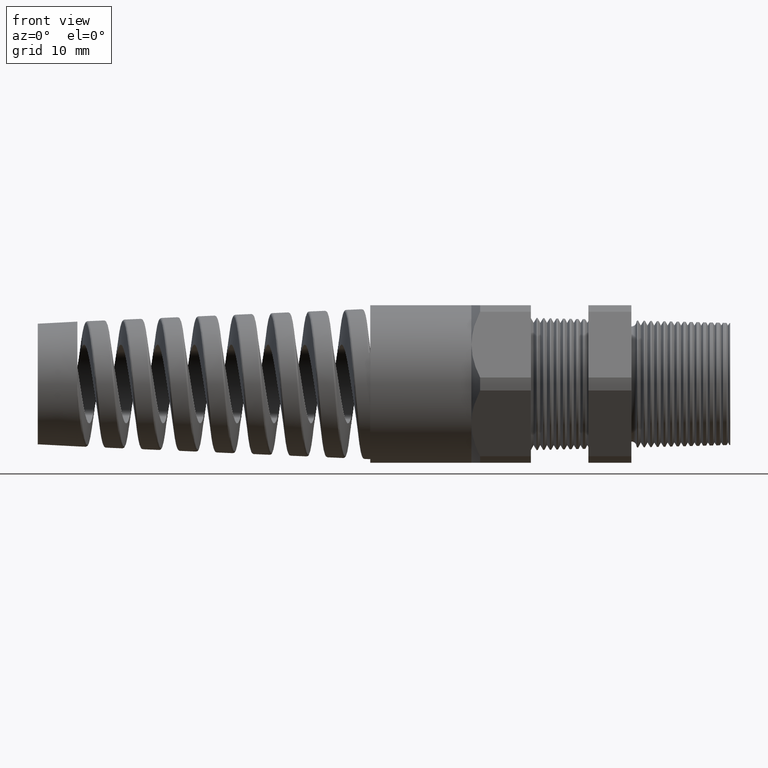
[diagram: clean part render]
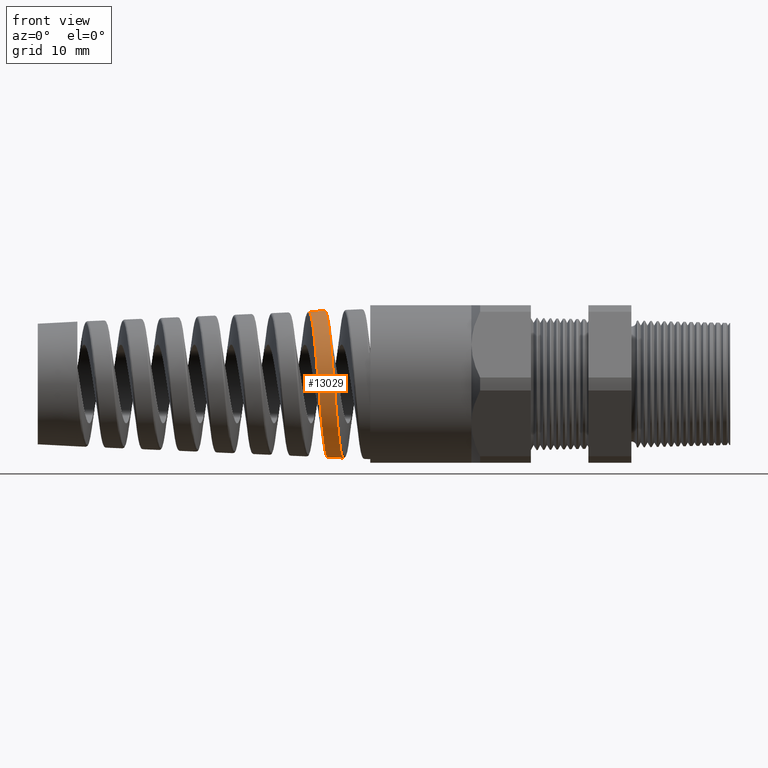
[diagram: same view with one face highlighted and labeled with its STEP entity id]
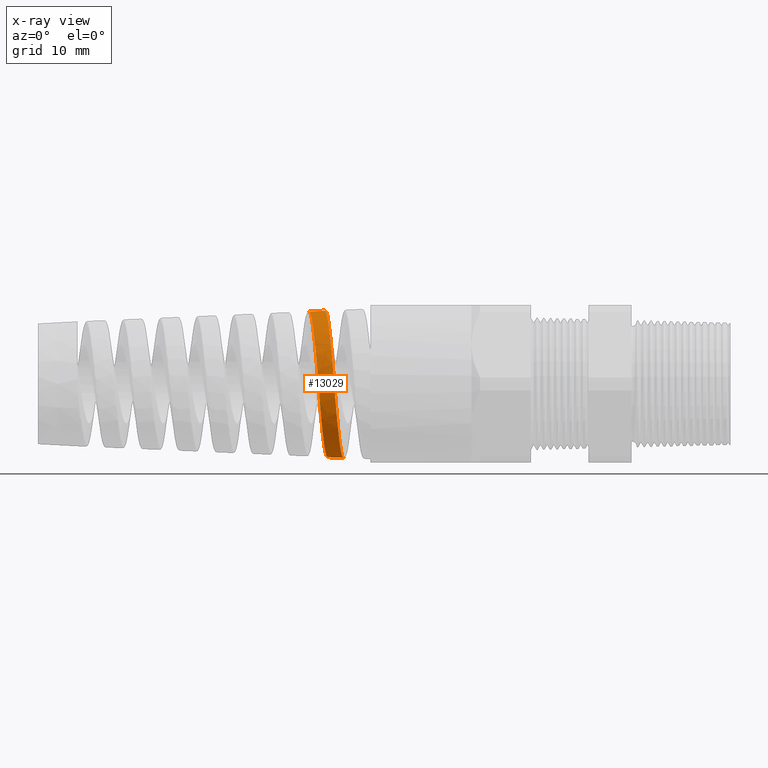
[diagram: x-ray of the same camera — body ghosted, the highlighted face saturated]
A machine part, front view. The second image highlights one B-rep face of the part: STEP entity #13029.
The next image is the same camera in x-ray: the body ghosted, the highlighted face saturated — about 0% of this face is hidden behind the body in this view.
In plain terms, the highlighted conical surface has half-angle 2.5 deg.
Its self-contained STEP definition (entity closure, byte-faithful):
#1559 = VERTEX_POINT ( 'NONE', #12031 ) ;
#1561 = EDGE_CURVE ( 'NONE', #1559, #1562, #12057, .T. ) ;
#1562 = VERTEX_POINT ( 'NONE', #12053 ) ;
#12031 = CARTESIAN_POINT ( 'NONE',  ( -2.231331900771360600, 1.538719108245146800E-015, 0.4323934370551409900 ) ) ;
#12053 = CARTESIAN_POINT ( 'NONE',  ( -2.136958732337116200, -9.837559784406085300E-016, 0.4365138585742439600 ) ) ;
#12054 = DIRECTION ( 'NONE',  ( 0.9990482215818576900, 5.341834311772765600E-018, 0.04361938736533634700 ) ) ;
#12055 = VECTOR ( 'NONE', #12054, 39.37007874015748100 ) ;
#12056 = CARTESIAN_POINT ( 'NONE',  ( -1.369999999999999900, 5.755839955992558400E-017, 0.4699999999999998600 ) ) ;
#12057 = LINE ( 'NONE', #12056, #12055 ) ;
#12923 = VERTEX_POINT ( 'NONE', #13869 ) ;
#12938 = VERTEX_POINT ( 'NONE', #13865 ) ;
#12991 = EDGE_LOOP ( 'NONE', ( #13021, #13022, #13023, #13041 ) ) ;
#13019 = EDGE_CURVE ( 'NONE', #1559, #12938, #14230, .T. ) ;
#13021 = ORIENTED_EDGE ( 'NONE', *, *, #1561, .F. ) ;
#13022 = ORIENTED_EDGE ( 'NONE', *, *, #13019, .T. ) ;
#13023 = ORIENTED_EDGE ( 'NONE', *, *, #16380, .T. ) ;
#13029 = ADVANCED_FACE ( 'NONE', ( #14228 ), #14261, .T. ) ;
#13041 = ORIENTED_EDGE ( 'NONE', *, *, #13057, .T. ) ;
#13057 = EDGE_CURVE ( 'NONE', #12923, #1562, #14462, .T. ) ;
#13865 = CARTESIAN_POINT ( 'NONE',  ( -2.121162570605299000, -1.098488534835225200E-012, -0.4372035338897904400 ) ) ;
#13869 = CARTESIAN_POINT ( 'NONE',  ( -2.027124883345048400, -1.869557683998183800E-017, -0.4413093079845087900 ) ) ;
#14203 = CARTESIAN_POINT ( 'NONE',  ( -2.171517275481169100, -0.4312836674185713800, -0.05853042810672694200 ) ) ;
#14204 = CARTESIAN_POINT ( 'NONE',  ( -2.173809867068220200, -0.4340851861067502300, -0.03023886372500571600 ) ) ;
#14205 = CARTESIAN_POINT ( 'NONE',  ( -2.176091333293166400, -0.4354910292023556100, -0.001932762701584900800 ) ) ;
#14206 = CARTESIAN_POINT ( 'NONE',  ( -2.178375429326629300, -0.4341367655323870600, 0.02640009026625405500 ) ) ;
#14207 = CARTESIAN_POINT ( 'NONE',  ( -2.180672662773507100, -0.4313785164358923100, 0.05474559502213508600 ) ) ;
#14208 = CARTESIAN_POINT ( 'NONE',  ( -2.181834296280764600, -0.4292788729023684900, 0.06900237557675999200 ) ) ;
#14209 = CARTESIAN_POINT ( 'NONE',  ( -2.185294272913224800, -0.4209437970030093800, 0.1110351096633477700 ) ) ;
#14210 = CARTESIAN_POINT ( 'NONE',  ( -2.187572040177133500, -0.4127218316210615700, 0.1381514525789061500 ) ) ;
#14211 = CARTESIAN_POINT ( 'NONE',  ( -2.192153015033352100, -0.3910528523841704200, 0.1906019694790175300 ) ) ;
#14212 = CARTESIAN_POINT ( 'NONE',  ( -2.194480288102528900, -0.3774189982537751700, 0.2161474475943709900 ) ) ;
#14213 = CARTESIAN_POINT ( 'NONE',  ( -2.199073210008148500, -0.3458622319635263300, 0.2633820683365656300 ) ) ;
#14214 = CARTESIAN_POINT ( 'NONE',  ( -2.201353600711398100, -0.3279053280312105900, 0.2852876916856335600 ) ) ;
#14215 = CARTESIAN_POINT ( 'NONE',  ( -2.204811509589987400, -0.2976633952822102000, 0.3155417360831688800 ) ) ;
#14216 = CARTESIAN_POINT ( 'NONE',  ( -2.205975966352819100, -0.2869754500334816800, 0.3252248025945172500 ) ) ;
#14217 = CARTESIAN_POINT ( 'NONE',  ( -2.208282935200708500, -0.2649147969889744100, 0.3433058598976183600 ) ) ;
#14218 = CARTESIAN_POINT ( 'NONE',  ( -2.209430192852991600, -0.2535046306975849400, 0.3517498141931059700 ) ) ;
#14219 = CARTESIAN_POINT ( 'NONE',  ( -2.212870076689168000, -0.2181588980338261800, 0.3753276114577912500 ) ) ;
#14220 = CARTESIAN_POINT ( 'NONE',  ( -2.215164198628793500, -0.1930681999559965000, 0.3887457103996759800 ) ) ;
#14221 = CARTESIAN_POINT ( 'NONE',  ( -2.219810310005696500, -0.1400110124368382800, 0.4106334170682022200 ) ) ;
#14222 = CARTESIAN_POINT ( 'NONE',  ( -2.222096644440896700, -0.1128320769876093200, 0.4187895851010250400 ) ) ;
#14223 = CARTESIAN_POINT ( 'NONE',  ( -2.225542304219461500, -0.07112939013308872100, 0.4269942274725931400 ) ) ;
#14224 = CARTESIAN_POINT ( 'NONE',  ( -2.226693341524334200, -0.05707161816231418700, 0.4290525756093521700 ) ) ;
#14225 = CARTESIAN_POINT ( 'NONE',  ( -2.229010475305106100, -0.02863524671693102800, 0.4317821038072549000 ) ) ;
#14226 = CARTESIAN_POINT ( 'NONE',  ( -2.230177561496665500, -0.01423940330200604300, 0.4324438365963104700 ) ) ;
#14227 = CARTESIAN_POINT ( 'NONE',  ( -2.231331900771360600, 1.538719108245146800E-015, 0.4323934370551409900 ) ) ;
#14228 = FACE_OUTER_BOUND ( 'NONE', #12991, .T. ) ;
#14230 = B_SPLINE_CURVE_WITH_KNOTS ( 'NONE', 3,
 ( #14227, #14226, #14225, #14224, #14223, #14222, #14221, #14220, #14219, #14218, #14217, #14216, #14215, #14214, #14213, #14212, #14211, #14210, #14209, #14208, #14207, #14206, #14205, #14204, #14203, #14286, #14285, #14284, #14283, #14282, #14281, #14280, #14279, #14278, #14277, #14276, #14275, #14274, #14273, #14272, #14271, #14270, #14269, #14268, #14267, #14266, #14265, #14264, #14263 ),
 .UNSPECIFIED., .F., .F.,
 ( 4, 2, 2, 2, 2, 2, 2, 2, 2, 2, 2, 1, 2, 2, 2, 2, 2, 2, 2, 2, 2, 2, 2, 2, 4 ),
 ( 0.4070003021110117900, 0.4080960166227987100, 0.4091917311345855700, 0.4113831601581593400, 0.4135745891817331200, 0.4146703036935200400, 0.4157660182053069000, 0.4179574472288806700, 0.4201488762524544500, 0.4223403052760282300, 0.4234360197878150900, 0.4245317342996020000, 0.4256274488113889200, 0.4267231633231757800, 0.4289145923467495600, 0.4300103068585364700, 0.4311060213703233300, 0.4332974503938971100, 0.4343931649056840300, 0.4354888794174708900, 0.4376803084410446600, 0.4387760229528315800, 0.4398717374646185000, 0.4409674519764053600, 0.4420631664881922700 ),
 .UNSPECIFIED. ) ;
#14258 = DIRECTION ( 'NONE',  ( 0.0000000000000000000, 0.0000000000000000000, -1.000000000000000000 ) ) ;
#14259 = DIRECTION ( 'NONE',  ( 1.000000000000000000, 0.0000000000000000000, 0.0000000000000000000 ) ) ;
#14260 = AXIS2_PLACEMENT_3D ( 'NONE', #14262, #14259, #14258 ) ;
#14261 = CONICAL_SURFACE ( 'NONE', #14260, 0.4699999999999998600, 0.04363323129985858400 ) ;
#14262 = CARTESIAN_POINT ( 'NONE',  ( -1.369999999999999900, 0.0000000000000000000, 0.0000000000000000000 ) ) ;
#14263 = CARTESIAN_POINT ( 'NONE',  ( -2.121162570605299000, -1.098488534835225200E-012, -0.4372035338897904400 ) ) ;
#14264 = CARTESIAN_POINT ( 'NONE',  ( -2.122307722575768700, -0.01428404826497243700, -0.4371535354749513900 ) ) ;
#14265 = CARTESIAN_POINT ( 'NONE',  ( -2.123461994771173300, -0.02867392872591293500, -0.4363940078195490700 ) ) ;
#14266 = CARTESIAN_POINT ( 'NONE',  ( -2.125747301005961500, -0.05700648581398074000, -0.4335031345675646200 ) ) ;
#14267 = CARTESIAN_POINT ( 'NONE',  ( -2.126884675444345300, -0.07102855163806357000, -0.4313745148217295000 ) ) ;
#14268 = CARTESIAN_POINT ( 'NONE',  ( -2.129158968301915000, -0.09878822629707476000, -0.4257735857633613300 ) ) ;
#14269 = CARTESIAN_POINT ( 'NONE',  ( -2.130295773213905200, -0.1125258418946660600, -0.4223012641926330900 ) ) ;
#14270 = CARTESIAN_POINT ( 'NONE',  ( -2.132577812223247300, -0.1397125792379831600, -0.4139973249003729400 ) ) ;
#14271 = CARTESIAN_POINT ( 'NONE',  ( -2.133728226000509500, -0.1532179816174283900, -0.4091416802657383800 ) ) ;
#14272 = CARTESIAN_POINT ( 'NONE',  ( -2.137177767931223800, -0.1928857375334525100, -0.3926216036488929300 ) ) ;
#14273 = CARTESIAN_POINT ( 'NONE',  ( -2.139445409813881800, -0.2178645187509352400, -0.3791938828618138200 ) ) ;
#14274 = CARTESIAN_POINT ( 'NONE',  ( -2.142864488760610500, -0.2531960935492967900, -0.3555444922316504100 ) ) ;
#14275 = CARTESIAN_POINT ( 'NONE',  ( -2.144006879427342600, -0.2646146623897422400, -0.3470725442497117900 ) ) ;
#14276 = CARTESIAN_POINT ( 'NONE',  ( -2.146306215823962700, -0.2867141772961570600, -0.3289189545009284000 ) ) ;
#14277 = CARTESIAN_POINT ( 'NONE',  ( -2.147461462260319600, -0.2973700383350258400, -0.3192455449343781800 ) ) ;
#14278 = CARTESIAN_POINT ( 'NONE',  ( -2.150892683788183700, -0.3275321031544757800, -0.2890433369855546800 ) ) ;
#14279 = CARTESIAN_POINT ( 'NONE',  ( -2.153159919452925400, -0.3454954461764356800, -0.2671508079096361300 ) ) ;
#14280 = CARTESIAN_POINT ( 'NONE',  ( -2.156596326336722900, -0.3692200728741776300, -0.2316795835015423000 ) ) ;
#14281 = CARTESIAN_POINT ( 'NONE',  ( -2.157753748041283200, -0.3766226371892531500, -0.2193456884420002800 ) ) ;
#14282 = CARTESIAN_POINT ( 'NONE',  ( -2.160057312630246300, -0.3901129738775704900, -0.1941169667445965500 ) ) ;
#14283 = CARTESIAN_POINT ( 'NONE',  ( -2.161200475665919100, -0.3961908378663421800, -0.1812598879046923600 ) ) ;
#14284 = CARTESIAN_POINT ( 'NONE',  ( -2.164623249965210500, -0.4124756207163128300, -0.1419814017503348000 ) ) ;
#14285 = CARTESIAN_POINT ( 'NONE',  ( -2.166896283676640300, -0.4207522629680438600, -0.1148594768215820400 ) ) ;
#14286 = CARTESIAN_POINT ( 'NONE',  ( -2.170360394199032600, -0.4291717028383267900, -0.07273244096105110900 ) ) ;
#14445 = CARTESIAN_POINT ( 'NONE',  ( -2.060188584508322300, -0.3569054817317701700, -0.2574974546097465500 ) ) ;
#14446 = CARTESIAN_POINT ( 'NONE',  ( -2.059050045816491500, -0.3483672857217057200, -0.2690236487292479400 ) ) ;
#14447 = CARTESIAN_POINT ( 'NONE',  ( -2.056759533741304000, -0.3300801475353079600, -0.2913221306937193700 ) ) ;
#14448 = CARTESIAN_POINT ( 'NONE',  ( -2.055605396432954800, -0.3203070226414257400, -0.3021062073771059200 ) ) ;
#14449 = CARTESIAN_POINT ( 'NONE',  ( -2.052179469950395700, -0.2898005030338328700, -0.3326147237467241300 ) ) ;
#14450 = CARTESIAN_POINT ( 'NONE',  ( -2.049918365015718000, -0.2677024292697435200, -0.3507642945020481000 ) ) ;
#14451 = CARTESIAN_POINT ( 'NONE',  ( -2.046499217616959900, -0.2319375796244661200, -0.3747250791161077500 ) ) ;
#14452 = CARTESIAN_POINT ( 'NONE',  ( -2.045350826964045700, -0.2195248116294248900, -0.3821914410515525100 ) ) ;
#14453 = CARTESIAN_POINT ( 'NONE',  ( -2.043055904948774000, -0.1940249459088689600, -0.3958586218536132600 ) ) ;
#14454 = CARTESIAN_POINT ( 'NONE',  ( -2.041917581350376000, -0.1810355635533523200, -0.4020142036646538500 ) ) ;
#14455 = CARTESIAN_POINT ( 'NONE',  ( -2.038511380859056000, -0.1413723045529819700, -0.4185084571990221300 ) ) ;
#14456 = CARTESIAN_POINT ( 'NONE',  ( -2.036251874013694300, -0.1140098319180960500, -0.4268930507334642900 ) ) ;
#14457 = CARTESIAN_POINT ( 'NONE',  ( -2.032816736471808400, -0.07155724549186144600, -0.4354567482603172200 ) ) ;
#14458 = CARTESIAN_POINT ( 'NONE',  ( -2.031665698809913300, -0.05718422362853181600, -0.4376246998986974600 ) ) ;
#14459 = CARTESIAN_POINT ( 'NONE',  ( -2.029389127566214100, -0.02859303278864821700, -0.4405173687808347500 ) ) ;
#14460 = CARTESIAN_POINT ( 'NONE',  ( -2.028256955003117300, -0.01429666241641783800, -0.4412598806684776000 ) ) ;
#14461 = CARTESIAN_POINT ( 'NONE',  ( -2.027124883345048400, -1.869557683998183800E-017, -0.4413093079845087900 ) ) ;
#14462 = B_SPLINE_CURVE_WITH_KNOTS ( 'NONE', 3,
 ( #14461, #14460, #14459, #14458, #14457, #14456, #14455, #14454, #14453, #14452, #14451, #14450, #14449, #14448, #14447, #14446, #14445, #14522, #14521, #14520, #14519, #14518, #14517, #14516, #14515, #14514, #14513, #14512, #14511, #14510, #14509, #14508, #14507, #14506, #14505, #14504, #14503, #14502, #14501, #14500, #14499, #14498, #14497, #14496, #14495, #14494, #14493 ),
 .UNSPECIFIED., .F., .F.,
 ( 4, 2, 2, 2, 2, 2, 2, 2, 2, 2, 2, 2, 2, 2, 2, 2, 2, 1, 2, 2, 2, 2, 2, 4 ),
 ( 0.04896264303005404300, 0.05007058619436918800, 0.05117852935868433300, 0.05339441568731462300, 0.05450235885162976700, 0.05561030201594491200, 0.05782618834457520200, 0.05893413150889034700, 0.06004207467320549200, 0.06225796100183578900, 0.06447384733046608600, 0.06558179049478123100, 0.06668973365909637600, 0.06890561998772668000, 0.07112150631635696900, 0.07333739264498725900, 0.07444533580930240400, 0.07555327897361756300, 0.07666122213793270800, 0.07776916530224786700, 0.07998505163087815700, 0.08109299479519330200, 0.08220093795950844700, 0.08441682428813875000 ),
 .UNSPECIFIED. ) ;
#14493 = CARTESIAN_POINT ( 'NONE',  ( -2.136958732337116200, -9.837559784406085300E-016, 0.4365138585742439600 ) ) ;
#14494 = CARTESIAN_POINT ( 'NONE',  ( -2.134656793890712400, -0.02874241036669041700, 0.4366143633773312300 ) ) ;
#14495 = CARTESIAN_POINT ( 'NONE',  ( -2.132375965640470800, -0.05720861251445783600, 0.4339023058148316900 ) ) ;
#14496 = CARTESIAN_POINT ( 'NONE',  ( -2.128927653978430500, -0.09949002989187799600, 0.4256272656652945200 ) ) ;
#14497 = CARTESIAN_POINT ( 'NONE',  ( -2.127767678971979900, -0.1135867074436062400, 0.4221393029328688900 ) ) ;
#14498 = CARTESIAN_POINT ( 'NONE',  ( -2.125457324680314100, -0.1412522914842159500, 0.4138109190676658200 ) ) ;
#14499 = CARTESIAN_POINT ( 'NONE',  ( -2.124310494670007500, -0.1547804168655044200, 0.4089921973936079300 ) ) ;
#14500 = CARTESIAN_POINT ( 'NONE',  ( -2.120876789861095600, -0.1944750170306506200, 0.3926278278121125300 ) ) ;
#14501 = CARTESIAN_POINT ( 'NONE',  ( -2.118596229444724300, -0.2197602458927661900, 0.3791923459347784600 ) ) ;
#14502 = CARTESIAN_POINT ( 'NONE',  ( -2.115128342424466500, -0.2558623032841407200, 0.3551351476157693600 ) ) ;
#14503 = CARTESIAN_POINT ( 'NONE',  ( -2.113972077662006600, -0.2675089414644431500, 0.3465061185115478300 ) ) ;
#14504 = CARTESIAN_POINT ( 'NONE',  ( -2.111679898248865600, -0.2897062429824847600, 0.3283068672683224200 ) ) ;
#14505 = CARTESIAN_POINT ( 'NONE',  ( -2.109397884402736300, -0.3109148889582484300, 0.3090963309736217700 ) ) ;
#14506 = CARTESIAN_POINT ( 'NONE',  ( -2.107112668372868900, -0.3301679949133344300, 0.2878881682755267100 ) ) ;
#14507 = CARTESIAN_POINT ( 'NONE',  ( -2.104815077273388500, -0.3484259434638702900, 0.2656646636174854200 ) ) ;
#14508 = CARTESIAN_POINT ( 'NONE',  ( -2.103653758980741400, -0.3570986802558210300, 0.2539771616360894700 ) ) ;
#14509 = CARTESIAN_POINT ( 'NONE',  ( -2.100200334972904600, -0.3811221165285924600, 0.2180037265034783800 ) ) ;
#14510 = CARTESIAN_POINT ( 'NONE',  ( -2.097931149678491400, -0.3945873139617245300, 0.1927610529025282300 ) ) ;
#14511 = CARTESIAN_POINT ( 'NONE',  ( -2.093360944467690400, -0.4165136922597328900, 0.1398114420984649900 ) ) ;
#14512 = CARTESIAN_POINT ( 'NONE',  ( -2.091038625318244900, -0.4249888030181142600, 0.1118278649121349200 ) ) ;
#14513 = CARTESIAN_POINT ( 'NONE',  ( -2.086465996877546700, -0.4361284481403554500, 0.05557037915870628000 ) ) ;
#14514 = CARTESIAN_POINT ( 'NONE',  ( -2.084200419724224800, -0.4389253031302633400, 0.02710567940708192100 ) ) ;
#14515 = CARTESIAN_POINT ( 'NONE',  ( -2.080760206251468500, -0.4389086448892992000, -0.01609575012736388900 ) ) ;
#14516 = CARTESIAN_POINT ( 'NONE',  ( -2.079601785541277600, -0.4381842269427155800, -0.03063964945969502300 ) ) ;
#14517 = CARTESIAN_POINT ( 'NONE',  ( -2.077307940638913700, -0.4353347586073724200, -0.05929417698684726800 ) ) ;
#14518 = CARTESIAN_POINT ( 'NONE',  ( -2.076167509434948800, -0.4332153313711800700, -0.07346800834226358000 ) ) ;
#14519 = CARTESIAN_POINT ( 'NONE',  ( -2.072751383621070300, -0.4248159922725760500, -0.1155375681952718800 ) ) ;
#14520 = CARTESIAN_POINT ( 'NONE',  ( -2.070478359148415900, -0.4164928950314538100, -0.1430385882907615500 ) ) ;
#14521 = CARTESIAN_POINT ( 'NONE',  ( -2.065870212412094900, -0.3942901283984731100, -0.1965668389451727400 ) ) ;
#14522 = CARTESIAN_POINT ( 'NONE',  ( -2.063601374368688300, -0.3807455028992607900, -0.2218154729835852500 ) ) ;
#14945 = DIRECTION ( 'NONE',  ( 0.9990482215818576900, 0.0000000000000000000, -0.04361938736533634700 ) ) ;
#14946 = VECTOR ( 'NONE', #14945, 39.37007874015748100 ) ;
#14947 = CARTESIAN_POINT ( 'NONE',  ( -1.369999999999999900, 0.0000000000000000000, -0.4699999999999998600 ) ) ;
#14948 = LINE ( 'NONE', #14947, #14946 ) ;
#16380 = EDGE_CURVE ( 'NONE', #12938, #12923, #14948, .T. ) ;